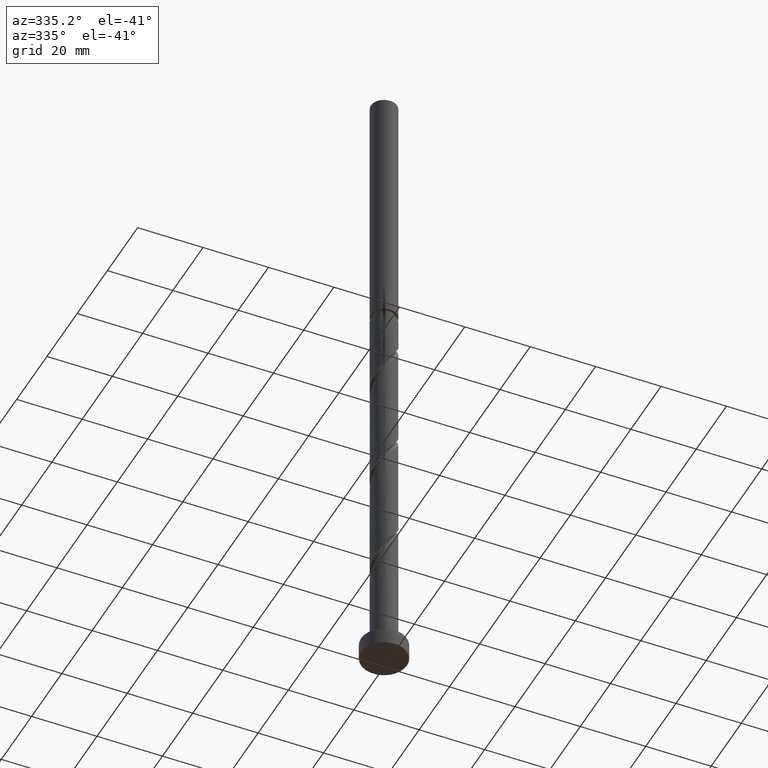
[diagram: clean part render]
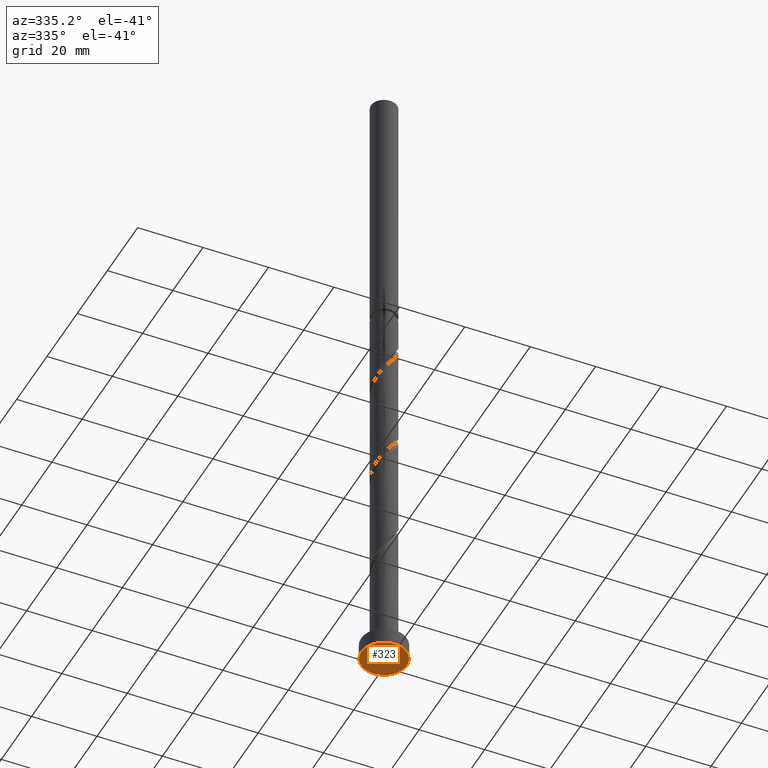
[diagram: same view with one face highlighted and labeled with its STEP entity id]
A machine part, auxiliary view. The second image highlights one B-rep face of the part: STEP entity #323.
In plain terms, the highlighted planar face has unit normal (0, 0, 1).
Its self-contained STEP definition (entity closure, byte-faithful):
#219 = CARTESIAN_POINT ( 'NONE',  ( -7.000000000000000000, 0.000000000000000000, 0.000000000000000000 ) ) ;
#266 = DIRECTION ( 'NONE',  ( 1.000000000000000000, 0.000000000000000000, 0.000000000000000000 ) ) ;
#322 = EDGE_LOOP ( 'NONE', ( #1290, #1386 ) ) ;
#323 = ADVANCED_FACE ( 'NONE', ( #1287 ), #471, .F. ) ;
#325 = VERTEX_POINT ( 'NONE', #1428 ) ;
#332 = VERTEX_POINT ( 'NONE', #219 ) ;
#376 = DIRECTION ( 'NONE',  ( 0.000000000000000000, 0.000000000000000000, 1.000000000000000000 ) ) ;
#383 = EDGE_CURVE ( 'NONE', #325, #332, #1712, .T. ) ;
#471 = PLANE ( 'NONE',  #1195 ) ;
#496 = DIRECTION ( 'NONE',  ( 0.000000000000000000, 0.000000000000000000, 1.000000000000000000 ) ) ;
#782 = CARTESIAN_POINT ( 'NONE',  ( 0.000000000000000000, 0.000000000000000000, 0.000000000000000000 ) ) ;
#888 = DIRECTION ( 'NONE',  ( 1.000000000000000000, 0.000000000000000000, -0.000000000000000000 ) ) ;
#950 = AXIS2_PLACEMENT_3D ( 'NONE', #782, #376, #1566 ) ;
#965 = CIRCLE ( 'NONE', #1551, 7.000000000000000000 ) ;
#1195 = AXIS2_PLACEMENT_3D ( 'NONE', #1696, #496, #888 ) ;
#1287 = FACE_OUTER_BOUND ( 'NONE', #322, .T. ) ;
#1290 = ORIENTED_EDGE ( 'NONE', *, *, #1744, .F. ) ;
#1386 = ORIENTED_EDGE ( 'NONE', *, *, #383, .F. ) ;
#1428 = CARTESIAN_POINT ( 'NONE',  ( 7.000000000000000000, 8.572527594031473190E-16, 0.000000000000000000 ) ) ;
#1457 = DIRECTION ( 'NONE',  ( 0.000000000000000000, 0.000000000000000000, 1.000000000000000000 ) ) ;
#1551 = AXIS2_PLACEMENT_3D ( 'NONE', #1594, #1457, #266 ) ;
#1566 = DIRECTION ( 'NONE',  ( 1.000000000000000000, 0.000000000000000000, 0.000000000000000000 ) ) ;
#1594 = CARTESIAN_POINT ( 'NONE',  ( 0.000000000000000000, 0.000000000000000000, 0.000000000000000000 ) ) ;
#1696 = CARTESIAN_POINT ( 'NONE',  ( 0.000000000000000000, 0.000000000000000000, 0.000000000000000000 ) ) ;
#1712 = CIRCLE ( 'NONE', #950, 7.000000000000000000 ) ;
#1744 = EDGE_CURVE ( 'NONE', #332, #325, #965, .T. ) ;